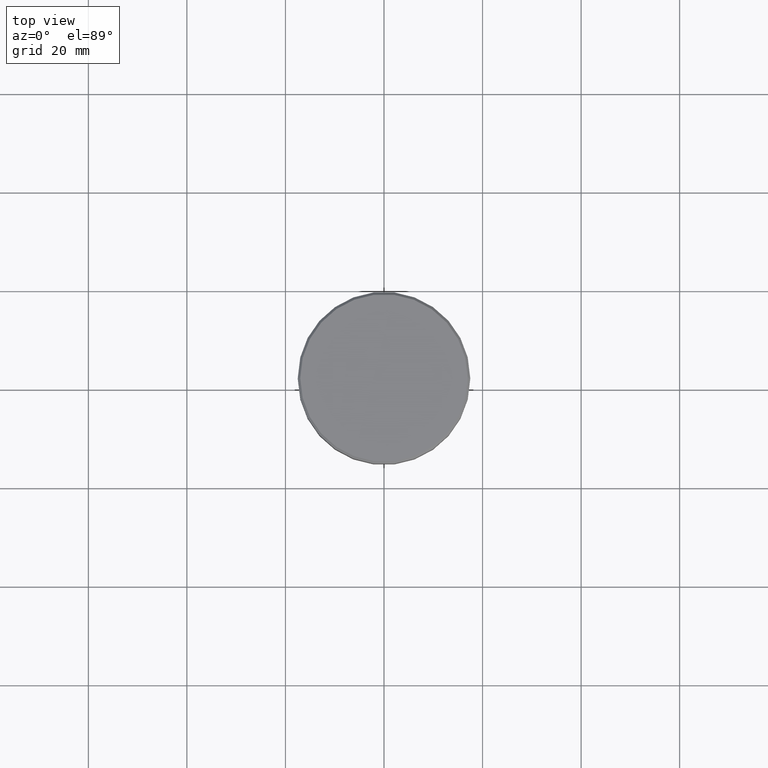
[diagram: clean part render]
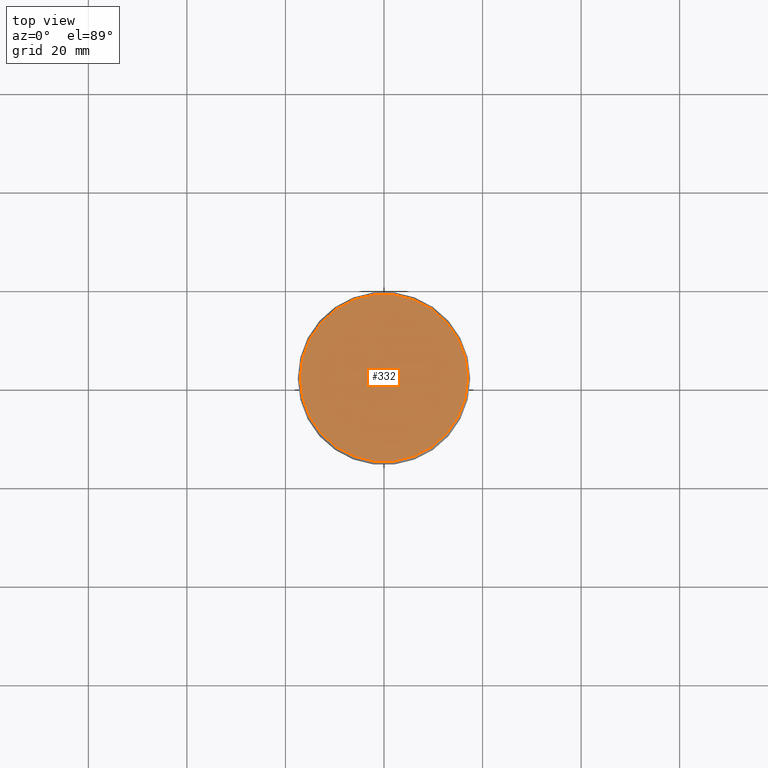
[diagram: same view with one face highlighted and labeled with its STEP entity id]
A machine part, top view. The second image highlights one B-rep face of the part: STEP entity #332.
In plain terms, the highlighted planar face has unit normal (0, -0, 1).
Its self-contained STEP definition (entity closure, byte-faithful):
#13 = AXIS2_PLACEMENT_3D ( 'NONE', #69, #258, #444 ) ;
#15 = ORIENTED_EDGE ( 'NONE', *, *, #407, .T. ) ;
#27 = CIRCLE ( 'NONE', #513, 17.00000000000000000 ) ;
#38 = CARTESIAN_POINT ( 'NONE',  ( -17.00000000000000000, 0.000000000000000000, 0.000000000000000000 ) ) ;
#58 = DIRECTION ( 'NONE',  ( 0.000000000000000000, -0.000000000000000000, 1.000000000000000000 ) ) ;
#69 = CARTESIAN_POINT ( 'NONE',  ( 0.000000000000000000, 0.000000000000000000, 0.000000000000000000 ) ) ;
#103 = PLANE ( 'NONE',  #576 ) ;
#118 = DIRECTION ( 'NONE',  ( 1.000000000000000000, 0.000000000000000000, 0.000000000000000000 ) ) ;
#141 = EDGE_LOOP ( 'NONE', ( #432, #15 ) ) ;
#192 = VERTEX_POINT ( 'NONE', #38 ) ;
#244 = DIRECTION ( 'NONE',  ( 1.000000000000000000, 0.000000000000000000, 0.000000000000000000 ) ) ;
#255 = CARTESIAN_POINT ( 'NONE',  ( 0.000000000000000000, 0.000000000000000000, 0.000000000000000000 ) ) ;
#258 = DIRECTION ( 'NONE',  ( -0.000000000000000000, -0.000000000000000000, 1.000000000000000000 ) ) ;
#332 = ADVANCED_FACE ( 'NONE', ( #565 ), #103, .T. ) ;
#340 = CARTESIAN_POINT ( 'NONE',  ( 0.000000000000000000, 0.000000000000000000, 0.000000000000000000 ) ) ;
#401 = EDGE_CURVE ( 'NONE', #192, #411, #27, .T. ) ;
#402 = CIRCLE ( 'NONE', #13, 17.00000000000000000 ) ;
#403 = CARTESIAN_POINT ( 'NONE',  ( 17.00000000000000000, 2.112515728529184067E-15, 0.000000000000000000 ) ) ;
#407 = EDGE_CURVE ( 'NONE', #411, #192, #402, .T. ) ;
#411 = VERTEX_POINT ( 'NONE', #403 ) ;
#432 = ORIENTED_EDGE ( 'NONE', *, *, #401, .T. ) ;
#444 = DIRECTION ( 'NONE',  ( 1.000000000000000000, 0.000000000000000000, 0.000000000000000000 ) ) ;
#492 = DIRECTION ( 'NONE',  ( -0.000000000000000000, -0.000000000000000000, 1.000000000000000000 ) ) ;
#513 = AXIS2_PLACEMENT_3D ( 'NONE', #255, #492, #118 ) ;
#565 = FACE_OUTER_BOUND ( 'NONE', #141, .T. ) ;
#576 = AXIS2_PLACEMENT_3D ( 'NONE', #340, #58, #244 ) ;